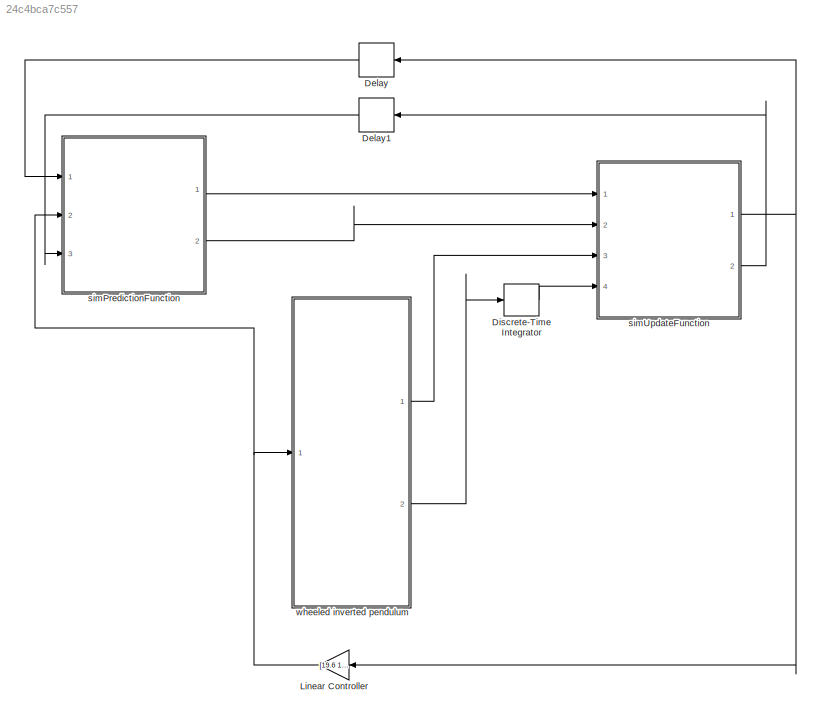
MODEL slx_24c4bca7c557
KIND model
CONFIG AbsTol = auto
CONFIG EnableMultiTasking = off
CONFIG FixedStep = 0.001
CONFIG MaxStep = auto
CONFIG MinStep = auto
CONFIG RelTol = 1e-3
CONFIG SampleTimeConstraint = Unconstrained
CONFIG SolverName = FixedStepAuto
CONFIG StartTime = 0.0
CONFIG StopTime = 10.0
BLOCK [Delay] Delay
  DelayLength = 1
  InitialCondition = 0
  InputPortMap = u0
  Ports = [1, 1]
BLOCK [Delay] Delay1
  DelayLength = 1
  InitialCondition = 0
  InputPortMap = u0
  Ports = [1, 1]
BLOCK [DiscreteIntegrator] Discrete-Time Integrator
  ICPrevOutput = DiscIntNeverNeededParam
  ICPrevScaledInput = DiscIntNeverNeededParam
  InitialConditionSetting = Auto
  Ports = [1, 1]
  SampleTime = -1
BLOCK [Gain] Linear Controller
  Gain = [19.6 1 0 0]
  Multiplication = Matrix(K*u)
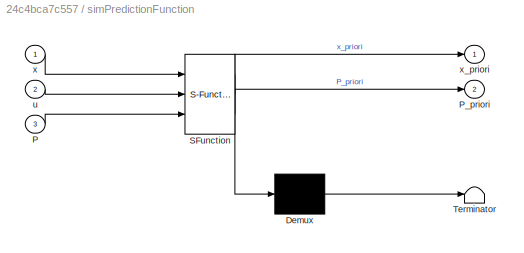
BLOCK [SubSystem] simPredictionFunction
  ErrorFcn = Stateflow.Translate.translate
  PermitHierarchicalResolution = ExplicitOnly
  Ports = [3, 2]
  RequestExecContextInheritance = off
  SFBlockType = MATLAB Function
  TreatAsAtomicUnit = on
BLOCK [Demux] simPredictionFunction/ Demux 
  Outputs = 1
  Ports = [1, 1]
BLOCK [S-Function] simPredictionFunction/ SFunction 
  EnableBusSupport = on
  FunctionName = sf_sfun
  PortCounts = [3 3]
  Ports = [3, 3]
  SFcnIsStateOwnerBlock = off
  SFunctionDeploymentMode = off
  Tag = Stateflow S-Function 2
BLOCK [Terminator] simPredictionFunction/ Terminator 
BLOCK [Inport] simPredictionFunction/P
  Port = 3
BLOCK [Outport] simPredictionFunction/P_priori
  Port = 2
BLOCK [Inport] simPredictionFunction/u
  Port = 2
BLOCK [Inport] simPredictionFunction/x
BLOCK [Outport] simPredictionFunction/x_priori
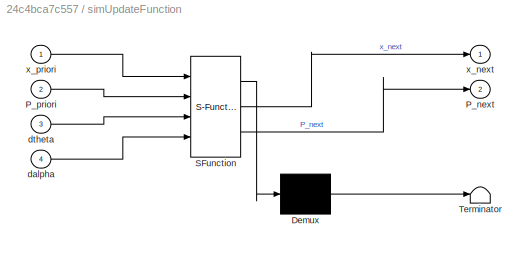
BLOCK [SubSystem] simUpdateFunction
  ErrorFcn = Stateflow.Translate.translate
  PermitHierarchicalResolution = ExplicitOnly
  Ports = [4, 2]
  RequestExecContextInheritance = off
  SFBlockType = MATLAB Function
  TreatAsAtomicUnit = on
BLOCK [Demux] simUpdateFunction/ Demux 
  Outputs = 1
  Ports = [1, 1]
BLOCK [S-Function] simUpdateFunction/ SFunction 
  EnableBusSupport = on
  FunctionName = sf_sfun
  PortCounts = [4 3]
  Ports = [4, 3]
  SFcnIsStateOwnerBlock = off
  SFunctionDeploymentMode = off
  Tag = Stateflow S-Function 1
BLOCK [Terminator] simUpdateFunction/ Terminator 
BLOCK [Outport] simUpdateFunction/P_next
  Port = 2
BLOCK [Inport] simUpdateFunction/P_priori
  Port = 2
BLOCK [Inport] simUpdateFunction/dalpha
  Port = 4
BLOCK [Inport] simUpdateFunction/dtheta
  Port = 3
BLOCK [Outport] simUpdateFunction/x_next
BLOCK [Inport] simUpdateFunction/x_priori
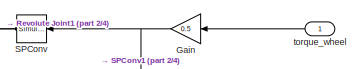
[diagram: wheeled inverted pendulum - part 1/4, top center region]
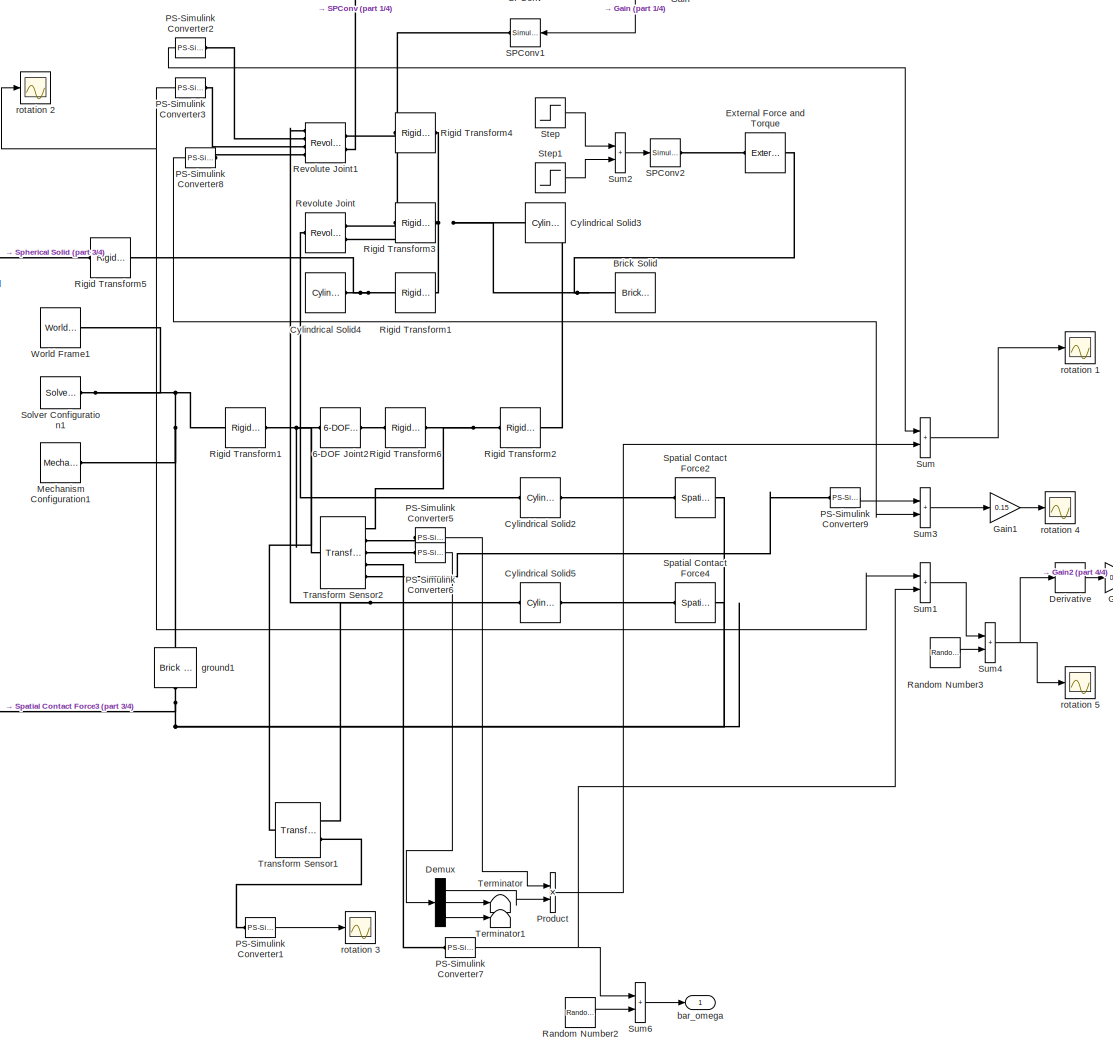
[diagram: wheeled inverted pendulum - part 2/4, most of the canvas]
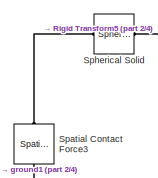
[diagram: wheeled inverted pendulum - part 3/4, middle left region]
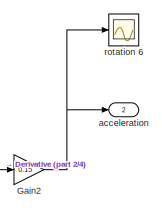
[diagram: wheeled inverted pendulum - part 4/4, middle right region]
BLOCK [SubSystem] wheeled inverted pendulum
  Ports = [1, 2]
  RequestExecContextInheritance = off
BLOCK [Reference] wheeled inverted pendulum/6-DOF Joint2  REF=sm_lib/Joints/6-DOF Joint
  Ports = [0, 0, 0, 0, 0, 1, 1]
  SourceBlock = sm_lib/Joints/6-DOF Joint
  SourceProductBaseCode = MS
  SourceType = 6-DOF Joint
BLOCK [Reference] wheeled inverted pendulum/Brick Solid  REF=sm_lib/Body Elements/Brick Solid
  NameLocation = top
  Ports = [0, 0, 0, 0, 0, 0, 1]
  SourceBlock = sm_lib/Body Elements/Brick Solid
  SourceProductBaseCode = MS
  SourceType = Brick Solid
BLOCK [Reference] wheeled inverted pendulum/Cylindrical Solid2  REF=sm_lib/Body Elements/Cylindrical Solid
  NameLocation = top
  Ports = [0, 0, 0, 0, 0, 1, 1]
  SourceBlock = sm_lib/Body Elements/Cylindrical Solid
  SourceProductBaseCode = MS
  SourceType = Cylindrical Solid
BLOCK [Reference] wheeled inverted pendulum/Cylindrical Solid3  REF=sm_lib/Body Elements/Cylindrical Solid
  NameLocation = top
  Ports = [0, 0, 0, 0, 0, 0, 1]
  SourceBlock = sm_lib/Body Elements/Cylindrical Solid
  SourceProductBaseCode = MS
  SourceType = Cylindrical Solid
BLOCK [Reference] wheeled inverted pendulum/Cylindrical Solid4  REF=sm_lib/Body Elements/Cylindrical Solid
  Ports = [0, 0, 0, 0, 0, 0, 1]
  SourceBlock = sm_lib/Body Elements/Cylindrical Solid
  SourceProductBaseCode = MS
  SourceType = Cylindrical Solid
BLOCK [Reference] wheeled inverted pendulum/Cylindrical Solid5  REF=sm_lib/Body Elements/Cylindrical Solid
  NameLocation = top
  Ports = [0, 0, 0, 0, 0, 1, 1]
  SourceBlock = sm_lib/Body Elements/Cylindrical Solid
  SourceProductBaseCode = MS
  SourceType = Cylindrical Solid
BLOCK [Demux] wheeled inverted pendulum/Demux
  Outputs = 3
  Ports = [1, 3]
BLOCK [Derivative] wheeled inverted pendulum/Derivative
BLOCK [Reference] wheeled inverted pendulum/External Force and Torque  REF=sm_lib/Forces and
Torques/External Force
and Torque
  Ports = [0, 0, 0, 0, 0, 1, 1]
  SourceBlock = sm_lib/Forces and\nTorques/External Force\nand Torque
  SourceProductBaseCode = MS
  SourceType = External Force\nand Torque
BLOCK [Gain] wheeled inverted pendulum/Gain
  Gain = 0.5
  NameLocation = top
BLOCK [Gain] wheeled inverted pendulum/Gain1
  Gain = 0.15
  Multiplication = Matrix(K*u)
BLOCK [Gain] wheeled inverted pendulum/Gain2
  Gain = 0.15
  Multiplication = Matrix(K*u)
BLOCK [Reference] wheeled inverted pendulum/Mechanism Configuration1  REF=sm_lib/Utilities/Mechanism
Configuration
  Ports = [0, 0, 0, 0, 0, 0, 1]
  SourceBlock = sm_lib/Utilities/Mechanism\nConfiguration
  SourceProductBaseCode = MS
  SourceType = Mechanism\nConfiguration
BLOCK [Reference] wheeled inverted pendulum/PS-Simulink Converter1  REF=nesl_utility/PS-Simulink
Converter
  Ports = [0, 1, 0, 0, 0, 1]
  SourceBlock = nesl_utility/PS-Simulink\nConverter
  SourceProductBaseCode = SS
  SourceType = PS-Simulink\nConverter
BLOCK [Reference] wheeled inverted pendulum/PS-Simulink Converter2  REF=nesl_utility/PS-Simulink
Converter
  NameLocation = top
  Ports = [0, 1, 0, 0, 0, 1]
  SourceBlock = nesl_utility/PS-Simulink\nConverter
  SourceProductBaseCode = SS
  SourceType = PS-Simulink\nConverter
BLOCK [Reference] wheeled inverted pendulum/PS-Simulink Converter3  REF=nesl_utility/PS-Simulink
Converter
  NameLocation = top
  Ports = [0, 1, 0, 0, 0, 1]
  SourceBlock = nesl_utility/PS-Simulink\nConverter
  SourceProductBaseCode = SS
  SourceType = PS-Simulink\nConverter
BLOCK [Reference] wheeled inverted pendulum/PS-Simulink Converter5  REF=nesl_utility/PS-Simulink
Converter
  Ports = [0, 1, 0, 0, 0, 1]
  SourceBlock = nesl_utility/PS-Simulink\nConverter
  SourceProductBaseCode = SS
  SourceType = PS-Simulink\nConverter
BLOCK [Reference] wheeled inverted pendulum/PS-Simulink Converter6  REF=nesl_utility/PS-Simulink
Converter
  Ports = [0, 1, 0, 0, 0, 1]
  SourceBlock = nesl_utility/PS-Simulink\nConverter
  SourceProductBaseCode = SS
  SourceType = PS-Simulink\nConverter
BLOCK [Reference] wheeled inverted pendulum/PS-Simulink Converter7  REF=nesl_utility/PS-Simulink
Converter
  Ports = [0, 1, 0, 0, 0, 1]
  SourceBlock = nesl_utility/PS-Simulink\nConverter
  SourceProductBaseCode = SS
  SourceType = PS-Simulink\nConverter
BLOCK [Reference] wheeled inverted pendulum/PS-Simulink Converter8  REF=nesl_utility/PS-Simulink
Converter
  NameLocation = top
  Ports = [0, 1, 0, 0, 0, 1]
  SourceBlock = nesl_utility/PS-Simulink\nConverter
  SourceProductBaseCode = SS
  SourceType = PS-Simulink\nConverter
BLOCK [Reference] wheeled inverted pendulum/PS-Simulink Converter9  REF=nesl_utility/PS-Simulink
Converter
  Ports = [0, 1, 0, 0, 0, 1]
  SourceBlock = nesl_utility/PS-Simulink\nConverter
  SourceProductBaseCode = SS
  SourceType = PS-Simulink\nConverter
BLOCK [Product] wheeled inverted pendulum/Product
  Ports = [2, 1]
BLOCK [RandomNumber] wheeled inverted pendulum/Random Number2
  SampleTime = 0.001
  Seed = 1
  Variance = 0.02
BLOCK [RandomNumber] wheeled inverted pendulum/Random Number3
  SampleTime = 0.001
  Seed = 1
  Variance = 0.01
BLOCK [Reference] wheeled inverted pendulum/Revolute Joint  REF=sm_lib/Joints/Revolute Joint
  NameLocation = top
  Ports = [0, 0, 0, 0, 0, 2, 1]
  SourceBlock = sm_lib/Joints/Revolute Joint
  SourceProductBaseCode = MS
  SourceType = Revolute Joint
BLOCK [Reference] wheeled inverted pendulum/Revolute Joint1  REF=sm_lib/Joints/Revolute Joint
  NameLocation = top
  Ports = [0, 0, 0, 0, 0, 2, 4]
  SourceBlock = sm_lib/Joints/Revolute Joint
  SourceProductBaseCode = MS
  SourceType = Revolute Joint
BLOCK [Reference] wheeled inverted pendulum/Rigid Transform1  REF=sm_lib/Frames and
Transforms/Rigid
Transform
  NameLocation = top
  Ports = [0, 0, 0, 0, 0, 1, 1]
  SourceBlock = sm_lib/Frames and\nTransforms/Rigid\nTransform
  SourceProductBaseCode = MS
  SourceType = Rigid\nTransform
BLOCK [Reference] wheeled inverted pendulum/Rigid Transform2  REF=sm_lib/Frames and
Transforms/Rigid
Transform
  Ports = [0, 0, 0, 0, 0, 1, 1]
  SourceBlock = sm_lib/Frames and\nTransforms/Rigid\nTransform
  SourceProductBaseCode = MS
  SourceType = Rigid\nTransform
BLOCK [Reference] wheeled inverted pendulum/Rigid Transform3  REF=sm_lib/Frames and
Transforms/Rigid
Transform
  NameLocation = top
  Ports = [0, 0, 0, 0, 0, 1, 1]
  SourceBlock = sm_lib/Frames and\nTransforms/Rigid\nTransform
  SourceProductBaseCode = MS
  SourceType = Rigid\nTransform
BLOCK [Reference] wheeled inverted pendulum/Rigid Transform4  REF=sm_lib/Frames and
Transforms/Rigid
Transform
  NameLocation = top
  Ports = [0, 0, 0, 0, 0, 1, 1]
  SourceBlock = sm_lib/Frames and\nTransforms/Rigid\nTransform
  SourceProductBaseCode = MS
  SourceType = Rigid\nTransform
BLOCK [Reference] wheeled inverted pendulum/Rigid Transform5  REF=sm_lib/Frames and
Transforms/Rigid
Transform
  NameLocation = top
  Ports = [0, 0, 0, 0, 0, 1, 1]
  SourceBlock = sm_lib/Frames and\nTransforms/Rigid\nTransform
  SourceProductBaseCode = MS
  SourceType = Rigid\nTransform
BLOCK [Reference] wheeled inverted pendulum/Rigid Transform6  REF=sm_lib/Frames and
Transforms/Rigid
Transform
  Ports = [0, 0, 0, 0, 0, 1, 1]
  SourceBlock = sm_lib/Frames and\nTransforms/Rigid\nTransform
  SourceProductBaseCode = MS
  SourceType = Rigid\nTransform
BLOCK [Reference] wheeled inverted pendulum/SPConv  REF=nesl_utility/Simulink-PS
Converter
  NameLocation = top
  Ports = [1, 0, 0, 0, 0, 0, 1]
  SourceBlock = nesl_utility/Simulink-PS\nConverter
  SourceProductBaseCode = SS
  SourceType = Simulink-PS\nConverter
BLOCK [Reference] wheeled inverted pendulum/SPConv1  REF=nesl_utility/Simulink-PS
Converter
  NameLocation = top
  Ports = [1, 0, 0, 0, 0, 0, 1]
  SourceBlock = nesl_utility/Simulink-PS\nConverter
  SourceProductBaseCode = SS
  SourceType = Simulink-PS\nConverter
BLOCK [Reference] wheeled inverted pendulum/SPConv2  REF=nesl_utility/Simulink-PS
Converter
  Ports = [1, 0, 0, 0, 0, 0, 1]
  SourceBlock = nesl_utility/Simulink-PS\nConverter
  SourceProductBaseCode = SS
  SourceType = Simulink-PS\nConverter
BLOCK [Reference] wheeled inverted pendulum/Solver Configuration1  REF=nesl_utility/Solver
Configuration
  Ports = [0, 0, 0, 0, 0, 0, 1]
  SourceBlock = nesl_utility/Solver\nConfiguration
  SourceProductBaseCode = SS
  SourceType = Solver\nConfiguration
BLOCK [Reference] wheeled inverted pendulum/Spatial Contact Force2  REF=sm_lib/Forces and
Torques/Spatial
Contact Force
  NameLocation = top
  Ports = [0, 0, 0, 0, 0, 1, 1]
  SourceBlock = sm_lib/Forces and\nTorques/Spatial\nContact Force
  SourceProductBaseCode = MS
  SourceType = Spatial\nContact Force
BLOCK [Reference] wheeled inverted pendulum/Spatial Contact Force3  REF=sm_lib/Forces and
Torques/Spatial
Contact Force
  NameLocation = right
  Ports = [0, 0, 0, 0, 0, 1, 1]
  SourceBlock = sm_lib/Forces and\nTorques/Spatial\nContact Force
  SourceProductBaseCode = MS
  SourceType = Spatial\nContact Force
BLOCK [Reference] wheeled inverted pendulum/Spatial Contact Force4  REF=sm_lib/Forces and
Torques/Spatial
Contact Force
  NameLocation = top
  Ports = [0, 0, 0, 0, 0, 1, 1]
  SourceBlock = sm_lib/Forces and\nTorques/Spatial\nContact Force
  SourceProductBaseCode = MS
  SourceType = Spatial\nContact Force
BLOCK [Reference] wheeled inverted pendulum/Spherical Solid  REF=sm_lib/Body Elements/Spherical Solid
  Ports = [0, 0, 0, 0, 0, 1, 1]
  SourceBlock = sm_lib/Body Elements/Spherical Solid
  SourceProductBaseCode = MS
  SourceType = Spherical Solid
BLOCK [Step] wheeled inverted pendulum/Step
  After = 20
  SampleTime = 0
BLOCK [Step] wheeled inverted pendulum/Step1
  After = -20
  SampleTime = 0
BLOCK [Sum] wheeled inverted pendulum/Sum
  IconShape = rectangular
  Ports = [2, 1]
BLOCK [Sum] wheeled inverted pendulum/Sum1
  IconShape = rectangular
  Ports = [2, 1]
BLOCK [Sum] wheeled inverted pendulum/Sum2
  IconShape = rectangular
  Ports = [2, 1]
BLOCK [Sum] wheeled inverted pendulum/Sum3
  IconShape = rectangular
  Ports = [2, 1]
BLOCK [Sum] wheeled inverted pendulum/Sum4
  IconShape = rectangular
  Ports = [2, 1]
BLOCK [Sum] wheeled inverted pendulum/Sum6
  IconShape = rectangular
  Ports = [2, 1]
BLOCK [Terminator] wheeled inverted pendulum/Terminator
BLOCK [Terminator] wheeled inverted pendulum/Terminator1
BLOCK [Reference] wheeled inverted pendulum/Transform Sensor1  REF=sm_lib/Frames and
Transforms/Transform
Sensor
  Ports = [0, 0, 0, 0, 0, 1, 2]
  SourceBlock = sm_lib/Frames and\nTransforms/Transform\nSensor
  SourceProductBaseCode = MS
  SourceType = Transform\nSensor
BLOCK [Reference] wheeled inverted pendulum/Transform Sensor2  REF=sm_lib/Frames and
Transforms/Transform
Sensor
  Ports = [0, 0, 0, 0, 0, 1, 5]
  SourceBlock = sm_lib/Frames and\nTransforms/Transform\nSensor
  SourceProductBaseCode = MS
  SourceType = Transform\nSensor
BLOCK [Reference] wheeled inverted pendulum/World Frame1  REF=sm_lib/Frames and
Transforms/World Frame
  Ports = [0, 0, 0, 0, 0, 0, 1]
  SourceBlock = sm_lib/Frames and\nTransforms/World Frame
  SourceProductBaseCode = MS
  SourceType = World Frame
BLOCK [Outport] wheeled inverted pendulum/acceleration
  Port = 2
BLOCK [Outport] wheeled inverted pendulum/bar_omega
BLOCK [Reference] wheeled inverted pendulum/ground1  REF=sm_lib/Body Elements/Brick Solid
  NameLocation = right
  Ports = [0, 0, 0, 0, 0, 1, 1]
  SourceBlock = sm_lib/Body Elements/Brick Solid
  SourceProductBaseCode = MS
  SourceType = Brick Solid
BLOCK [Scope] wheeled inverted pendulum/rotation 1
  Floating = off
  NumInputPorts = 1
  Ports = [1]
  ScopeSpecificationString = Simulink.scopes.TimeScopeBlockCfg('CurrentConfiguration', extmgr.ConfigurationSet(extmgr.Configuration('Core','General UI',true),extmgr.Configuration('Core','Source UI',true),extmgr.Configuration('Sources','WiredSimulink',true,'DataLoggingVariableName','ScopeData1'),extmgr.Configuration('Visuals','Time Domain',true,'SerializedDisplays',{struct('MinYLimReal','-2.84531','MaxYLimReal','8.35336','YLab...<+1476ch>
BLOCK [Scope] wheeled inverted pendulum/rotation 2
  Floating = off
  NumInputPorts = 1
  Ports = [1]
  ScopeSpecificationString = Simulink.scopes.TimeScopeBlockCfg('CurrentConfiguration', extmgr.ConfigurationSet(extmgr.Configuration('Core','General UI',true),extmgr.Configuration('Core','Source UI',true),extmgr.Configuration('Sources','WiredSimulink',true,'DataLoggingVariableName','ScopeData2'),extmgr.Configuration('Visuals','Time Domain',true,'SerializedDisplays',{struct('MinYLimReal','-13.98431','MaxYLimReal','3.50549','YLa...<+1531ch>
BLOCK [Scope] wheeled inverted pendulum/rotation 3
  Floating = off
  NumInputPorts = 1
  Ports = [1]
  ScopeSpecificationString = Simulink.scopes.TimeScopeBlockCfg('CurrentConfiguration', extmgr.ConfigurationSet(extmgr.Configuration('Core','General UI',true),extmgr.Configuration('Core','Source UI',true),extmgr.Configuration('Sources','WiredSimulink',true,'DataLoggingVariableName','ScopeData3'),extmgr.Configuration('Visuals','Time Domain',true,'SerializedDisplays',{struct('MinYLimReal','-0.09894','MaxYLimReal','0.89048','YLab...<+1514ch>
BLOCK [Scope] wheeled inverted pendulum/rotation 4
  Floating = off
  NumInputPorts = 1
  Ports = [1]
  ScopeSpecificationString = Simulink.scopes.TimeScopeBlockCfg('CurrentConfiguration', extmgr.ConfigurationSet(extmgr.Configuration('Core','General UI',true),extmgr.Configuration('Core','Source UI',true),extmgr.Configuration('Sources','WiredSimulink',true,'DataLoggingVariableName','ScopeData1'),extmgr.Configuration('Visuals','Time Domain',true,'SerializedDisplays',{struct('MinYLimReal','-76.83021','MaxYLimReal','108.08682','Y...<+1491ch>
BLOCK [Scope] wheeled inverted pendulum/rotation 5
  Floating = off
  NumInputPorts = 1
  Ports = [1]
  ScopeSpecificationString = Simulink.scopes.TimeScopeBlockCfg('CurrentConfiguration', extmgr.ConfigurationSet(extmgr.Configuration('Core','General UI',true),extmgr.Configuration('Core','Source UI',true),extmgr.Configuration('Sources','WiredSimulink',true,'DataLoggingVariableName','ScopeData2'),extmgr.Configuration('Visuals','Time Domain',true,'SerializedDisplays',{struct('MinYLimReal','-4.315','MaxYLimReal','12.6847','YLabel...<+1475ch>
BLOCK [Scope] wheeled inverted pendulum/rotation 6
  Floating = off
  NumInputPorts = 1
  Ports = [1]
  ScopeSpecificationString = Simulink.scopes.TimeScopeBlockCfg('CurrentConfiguration', extmgr.ConfigurationSet(extmgr.Configuration('Core','General UI',true),extmgr.Configuration('Core','Source UI',true),extmgr.Configuration('Sources','WiredSimulink',true,'DataLoggingVariableName','ScopeData3'),extmgr.Configuration('Visuals','Time Domain',true,'SerializedDisplays',{struct('MinYLimReal','-112.18574','MaxYLimReal','138.43242','...<+1494ch>
BLOCK [Inport] wheeled inverted pendulum/torque_wheel
  NameLocation = top
LINE Delay1:1 -> simPredictionFunction:3
LINE Delay:1 -> simPredictionFunction:1
LINE Discrete-Time Integrator:1 -> simUpdateFunction:4
NET Linear Controller:1 -> simPredictionFunction:2, wheeled inverted pendulum:1
LINE simPredictionFunction:1 -> simUpdateFunction:1
LINE simPredictionFunction:2 -> simUpdateFunction:2
NET simUpdateFunction:1 -> Delay:1, Linear Controller:1
LINE simUpdateFunction:2 -> Delay1:1
LINE wheeled inverted pendulum/Demux:1 -> wheeled inverted pendulum/Product:2
LINE wheeled inverted pendulum/Demux:2 -> wheeled inverted pendulum/Terminator:1
LINE wheeled inverted pendulum/Demux:3 -> wheeled inverted pendulum/Terminator1:1
LINE wheeled inverted pendulum/Derivative:1 -> wheeled inverted pendulum/Gain2:1
LINE wheeled inverted pendulum/Gain1:1 -> wheeled inverted pendulum/rotation 4:1
NET wheeled inverted pendulum/Gain2:1 -> wheeled inverted pendulum/acceleration:1, wheeled inverted pendulum/rotation 6:1
NET wheeled inverted pendulum/Gain:1 -> wheeled inverted pendulum/SPConv1:1, wheeled inverted pendulum/SPConv:1
LINE wheeled inverted pendulum/PS-Simulink Converter1:1 -> wheeled inverted pendulum/rotation 3:1
LINE wheeled inverted pendulum/PS-Simulink Converter2:1 -> wheeled inverted pendulum/Sum:1
NET wheeled inverted pendulum/PS-Simulink Converter3:1 -> wheeled inverted pendulum/Sum1:1, wheeled inverted pendulum/rotation 2:1
LINE wheeled inverted pendulum/PS-Simulink Converter5:1 -> wheeled inverted pendulum/Product:1
LINE wheeled inverted pendulum/PS-Simulink Converter6:1 -> wheeled inverted pendulum/Demux:1
NET wheeled inverted pendulum/PS-Simulink Converter7:1 -> wheeled inverted pendulum/Sum1:2, wheeled inverted pendulum/Sum6:1
LINE wheeled inverted pendulum/PS-Simulink Converter8:1 -> wheeled inverted pendulum/Sum3:2
LINE wheeled inverted pendulum/PS-Simulink Converter9:1 -> wheeled inverted pendulum/Sum3:1
LINE wheeled inverted pendulum/Product:1 -> wheeled inverted pendulum/Sum:2
LINE wheeled inverted pendulum/Random Number2:1 -> wheeled inverted pendulum/Sum6:2
LINE wheeled inverted pendulum/Random Number3:1 -> wheeled inverted pendulum/Sum4:2
LINE wheeled inverted pendulum/Step1:1 -> wheeled inverted pendulum/Sum2:2
LINE wheeled inverted pendulum/Step:1 -> wheeled inverted pendulum/Sum2:1
LINE wheeled inverted pendulum/Sum1:1 -> wheeled inverted pendulum/Sum4:1
LINE wheeled inverted pendulum/Sum2:1 -> wheeled inverted pendulum/SPConv2:1
LINE wheeled inverted pendulum/Sum3:1 -> wheeled inverted pendulum/Gain1:1
NET wheeled inverted pendulum/Sum4:1 -> wheeled inverted pendulum/Derivative:1, wheeled inverted pendulum/rotation 5:1
LINE wheeled inverted pendulum/Sum6:1 -> wheeled inverted pendulum/bar_omega:1
LINE wheeled inverted pendulum/Sum:1 -> wheeled inverted pendulum/rotation 1:1
LINE wheeled inverted pendulum/torque_wheel:1 -> wheeled inverted pendulum/Gain:1
LINE wheeled inverted pendulum:1 -> simUpdateFunction:3
LINE wheeled inverted pendulum:2 -> Discrete-Time Integrator:1
PNET net1: wheeled inverted pendulum/6-DOF Joint2:LConn1 -- wheeled inverted pendulum/Cylindrical Solid4:RConn1 -- wheeled inverted pendulum/Rigid Transform1:RConn1 -- wheeled inverted pendulum/Rigid Transform5:LConn1 -- wheeled inverted pendulum/Transform Sensor1:LConn1 -- wheeled inverted pendulum/Transform Sensor2:LConn1
PLINE wheeled inverted pendulum/6-DOF Joint2:RConn1 -- wheeled inverted pendulum/Rigid Transform6:LConn1
PNET net2: wheeled inverted pendulum/Brick Solid:RConn1 -- wheeled inverted pendulum/External Force and Torque:RConn1 -- wheeled inverted pendulum/Mechanism Configuration1:RConn1 -- wheeled inverted pendulum/Rigid Transform1:LConn1 -- wheeled inverted pendulum/Rigid Transform2:RConn1 -- wheeled inverted pendulum/Rigid Transform3:LConn1 -- wheeled inverted pendulum/Rigid Transform4:LConn1 -- wheeled inverted pendulum/Solver Configuration1:RConn1 -- wheeled inverted pendulum/World Frame1:RConn1 -- wheeled inverted pendulum/ground1:RConn1
PLINE wheeled inverted pendulum/Cylindrical Solid2:LConn1 -- wheeled inverted pendulum/Spatial Contact Force2:RConn1
PLINE wheeled inverted pendulum/Cylindrical Solid2:RConn1 -- wheeled inverted pendulum/Revolute Joint:RConn1
PLINE wheeled inverted pendulum/Cylindrical Solid5:LConn1 -- wheeled inverted pendulum/Spatial Contact Force4:RConn1
PNET net3: wheeled inverted pendulum/Cylindrical Solid5:RConn1 -- wheeled inverted pendulum/Revolute Joint1:RConn1 -- wheeled inverted pendulum/Transform Sensor1:RConn1
PLINE wheeled inverted pendulum/External Force and Torque:LConn1 -- wheeled inverted pendulum/SPConv2:RConn1
PLINE wheeled inverted pendulum/PS-Simulink Converter1:LConn1 -- wheeled inverted pendulum/Transform Sensor1:RConn2
PLINE wheeled inverted pendulum/PS-Simulink Converter2:LConn1 -- wheeled inverted pendulum/Revolute Joint1:RConn2
PLINE wheeled inverted pendulum/PS-Simulink Converter3:LConn1 -- wheeled inverted pendulum/Revolute Joint1:RConn3
PLINE wheeled inverted pendulum/PS-Simulink Converter5:LConn1 -- wheeled inverted pendulum/Transform Sensor2:RConn2
PLINE wheeled inverted pendulum/PS-Simulink Converter6:LConn1 -- wheeled inverted pendulum/Transform Sensor2:RConn3
PLINE wheeled inverted pendulum/PS-Simulink Converter7:LConn1 -- wheeled inverted pendulum/Transform Sensor2:RConn4
PLINE wheeled inverted pendulum/PS-Simulink Converter8:LConn1 -- wheeled inverted pendulum/Revolute Joint1:RConn4
PLINE wheeled inverted pendulum/PS-Simulink Converter9:LConn1 -- wheeled inverted pendulum/Transform Sensor2:RConn5
PLINE wheeled inverted pendulum/Revolute Joint1:LConn1 -- wheeled inverted pendulum/Rigid Transform4:RConn1
PLINE wheeled inverted pendulum/Revolute Joint1:LConn2 -- wheeled inverted pendulum/SPConv:RConn1
PLINE wheeled inverted pendulum/Revolute Joint:LConn1 -- wheeled inverted pendulum/Rigid Transform3:RConn1
PLINE wheeled inverted pendulum/Revolute Joint:LConn2 -- wheeled inverted pendulum/SPConv1:RConn1
PNET net4: wheeled inverted pendulum/Rigid Transform2:LConn1 -- wheeled inverted pendulum/Rigid Transform6:RConn1 -- wheeled inverted pendulum/Transform Sensor2:RConn1
PLINE wheeled inverted pendulum/Rigid Transform5:RConn1 -- wheeled inverted pendulum/Spherical Solid:RConn1
PNET net5: wheeled inverted pendulum/Spatial Contact Force2:LConn1 -- wheeled inverted pendulum/Spatial Contact Force3:LConn1 -- wheeled inverted pendulum/Spatial Contact Force4:LConn1 -- wheeled inverted pendulum/ground1:LConn1
PLINE wheeled inverted pendulum/Spatial Contact Force3:RConn1 -- wheeled inverted pendulum/Spherical Solid:LConn1
note: NET lines group one-source signal fan-out (src -> all destinations, sorted); 1:1 wires keep LINE; PNET lines group multi-terminal physical nets as a canonical sorted terminal list (undirected conserving connections); 2-terminal nets keep the pairwise PLINE form
CHART simUpdateFunction states=1 transitions=1
  STATE_LABEL 'eML_blk_kernel()'
  STATE_LABEL 'SCRIPT:\nfunction [x_next, P_next] = simUpdateFunction(x_priori, P_priori, dtheta, dalpha)\nR_t = diag([0.02, 0.01]);\nymeas = [dtheta;dalpha];\nx_next = zeros(4,1);\nP_next = zeros(4,4);\n[x_next, P_next] = updateFunction(x_priori, P_priori, R_t, ymeas);\nend'
CHART simPredictionFunction states=1 transitions=1
  STATE_LABEL 'eML_blk_kernel()'
  STATE_LABEL 'SCRIPT:\nfunction [x_priori, P_priori] = simPredictionFunction(x, u, P)\nQ_t = 1e-3 * diag([0.0001, 0.1, 10, 100]);\nx_priori = zeros(4,1);\nP_priori = zeros(4,4);\n[x_priori, P_priori] = predictionFunction(x, u, P, Q_t);\nend'
CHART  states=0 transitions=0
CHART  states=0 transitions=0
